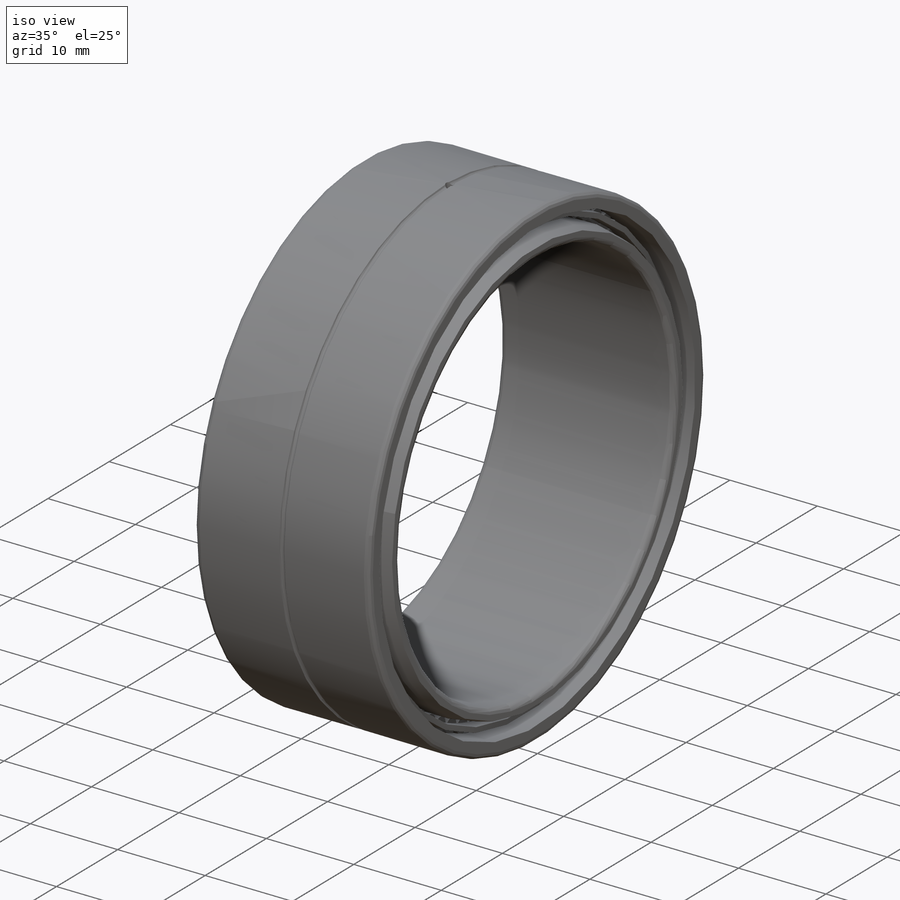
[diagram: iso view]
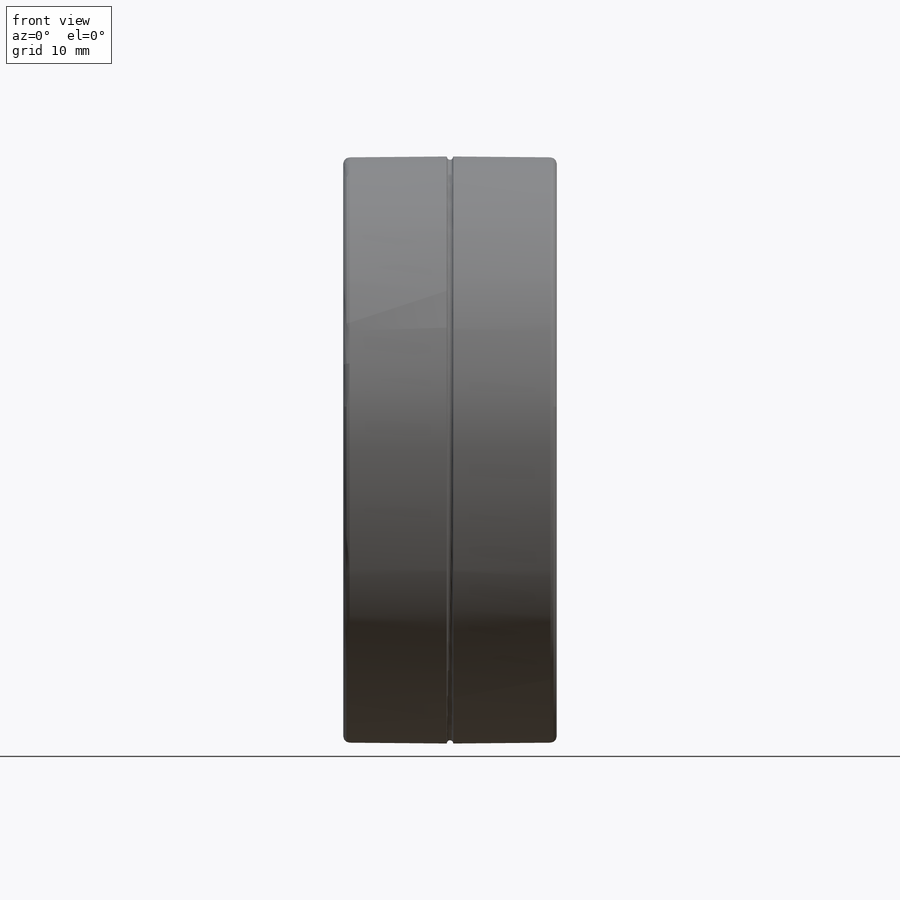
[diagram: front view]
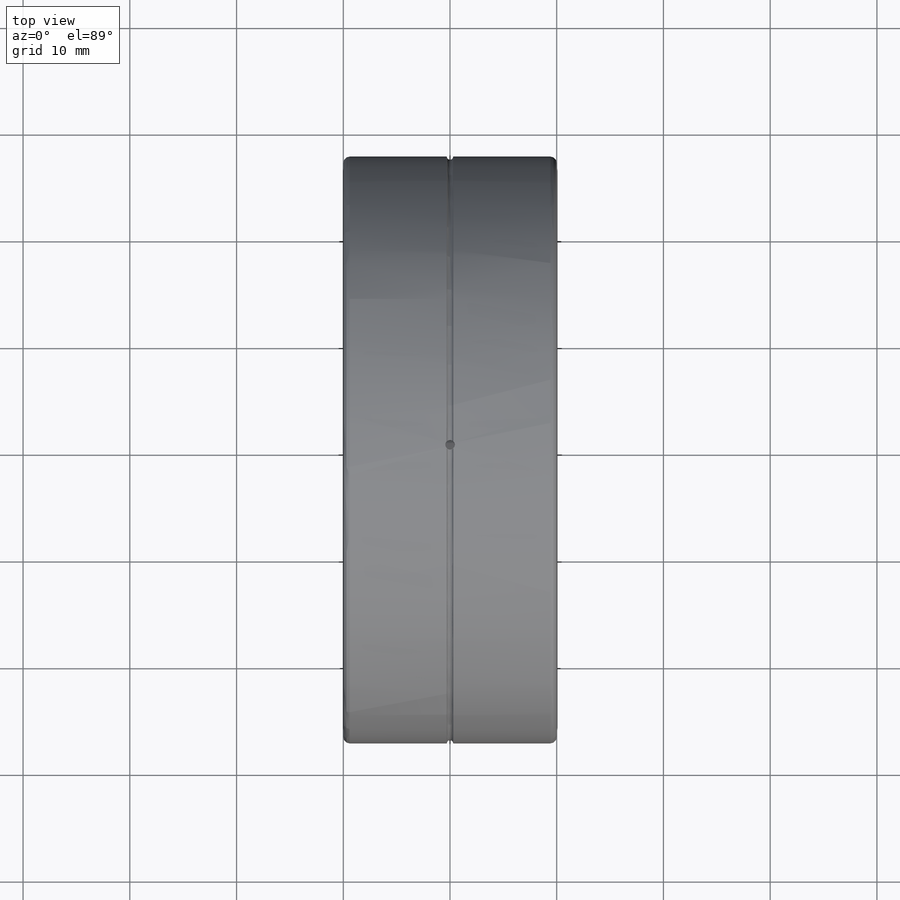
[diagram: top view]
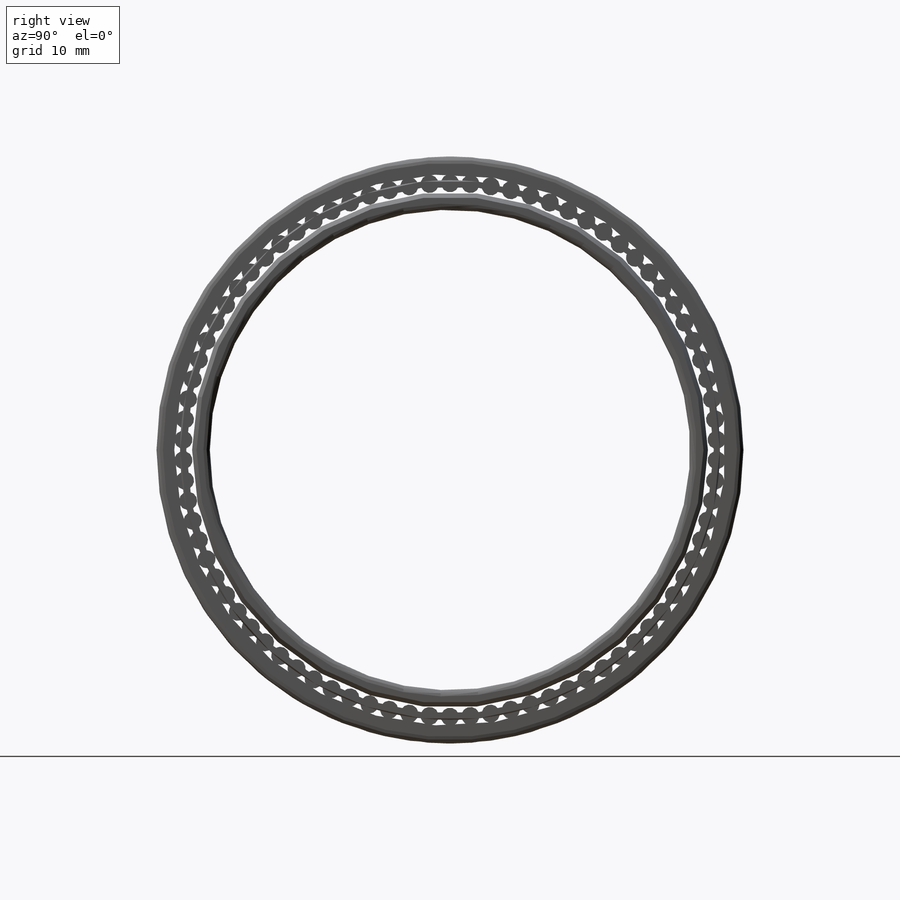
[diagram: right view]
SOLIDWORKS PART (.sldprt)
format: sldprt  version: not decoded by parser v0  size: 736,256 bytes
history: native  units: mm
features: sketch x7, revolve x4, cut_revolve x2, material x1, pattern_circular x1, plane x1, cut_extrude x1, mirror x1 (+15 scaffold rows collapsed; 1 parser-record rows omitted)
feature tree (34):
  parser-record x1  (decoder bookkeeping rows leaked as tree rows — omitted from the tree; the rows remain in map.json)
  scaffold x15  (default folders/planes/origin — collapsed)
  material  "材质 <未指定>"
  sketch  "Sketch1"  dims[XR=0.6mm DD=55.0mm XD=45.0mm DBC=20.0mm D1=~1.666667mm ZJ=50.0mm GZZJ=~1.706667mm GZC=~13.333333mm GJZJ=~0.568889mm GJZ=~16.666667mm D2=~0.416667mm D3=~48.333333mm]
  revolve  "Revolve1"  Angle=360deg
  sketch  "Sketch7"  dims[D3=~0.111111mm D1=0.2mm D2=~0.333333mm]
  cut_revolve  "Cut-Revolve2"  Angle=360deg
  sketch  "Sketch2"
  revolve  "Revolve2"  Angle=360deg
  revolve  "Revolve3"  [1 undecoded]
  sketch  "Sketch1<4>"  dims[D1=360.0deg]
  pattern_circular  "Circular-Pattern1"  Count=82 Angle=360deg
  sketch  "Sketch4"
  revolve  "Revolve4"  Angle=360deg
  sketch  "Sketch5"  dims[c1.D1=~0.802554mm c1.D2=0.6mm c2.D1=~0.773497mm]
  cut_revolve  "Cut-Revolve1"  Angle=360deg
  plane  "Plane1"  Offset=27.5mm
  sketch  "Sketch6"  dims[D1=0.9mm D2=10.0mm]
  cut_extrude  "Cut-Extrude1"  Depth=1.666667mm
  mirror  "Mirror1"  CopiedFlag=1
decode coverage: 13 of 16 modeling features carry decoded parameters
note: ~ marks probable driven/reference dimensions
note: 1 parameter value undecoded
note: suppression state not decoded; provenance and decode notes live in map.json
